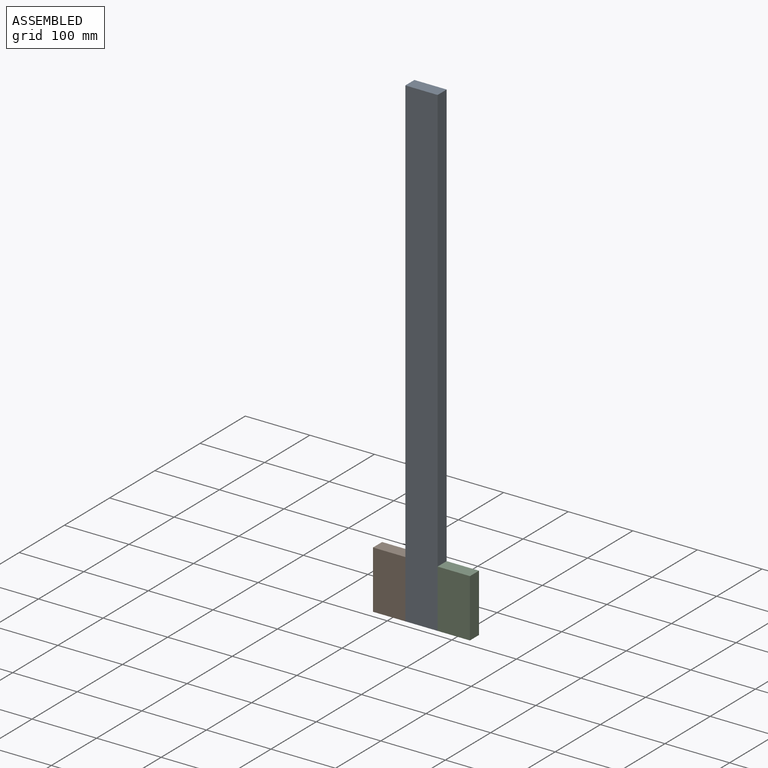
[diagram: assembled view]
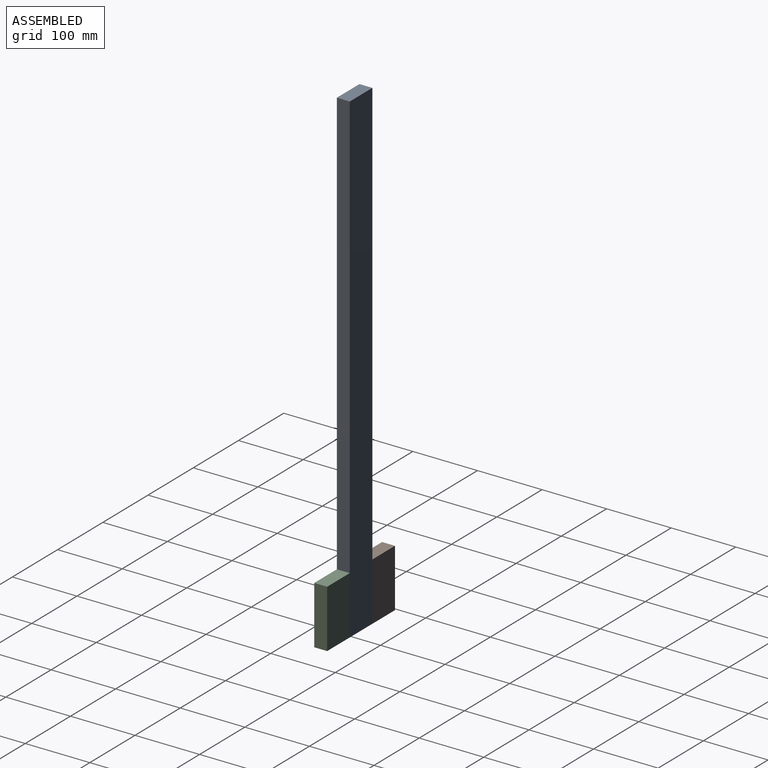
[diagram: assembled view, second angle]
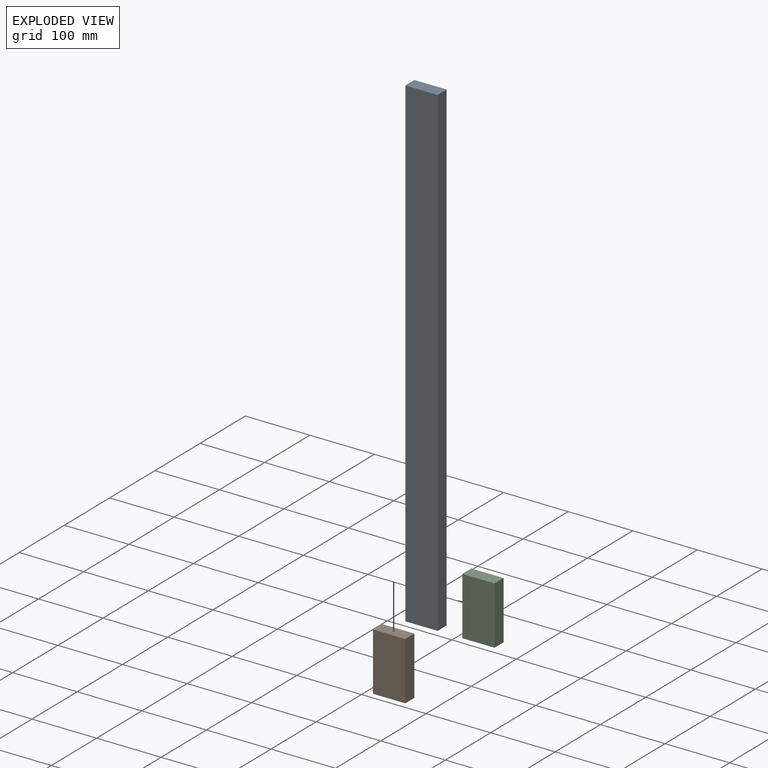
[diagram: exploded view]
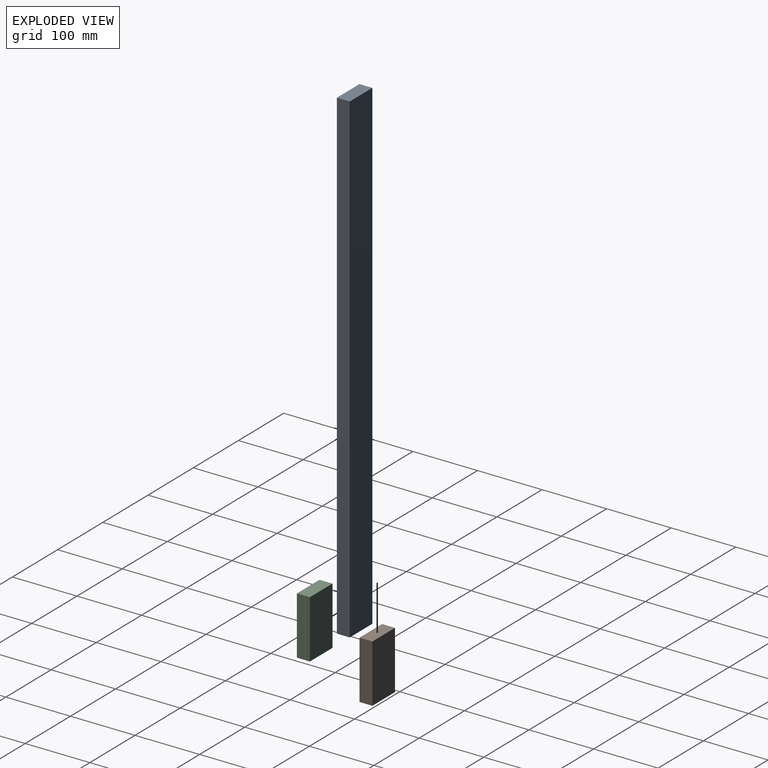
[diagram: exploded view, second angle]
ASSEMBLY  parts=3 mates=4
PART A: 6 faces, bbox 50x20x750 mm
  f0: plane 750x20mm, normal (-1,0,0), area 15000mm2, adj f1,f3,f4,f5
  f1: plane 50x20mm, normal (0,0,-1), area 1000mm2, adj f0,f2,f4,f5
  f2: plane 750x20mm, normal (1,0,0), area 15000mm2, adj f1,f3,f4,f5
  f3: plane 50x20mm, normal (0,0,1), area 1000mm2, adj f0,f2,f4,f5
  f4: plane 750x50mm, normal (0,-1,0), area 37500mm2, adj f0,f1,f2,f3
  f5: plane 750x50mm, normal (0,1,0), area 37500mm2, adj f0,f1,f2,f3
PART B: 6 faces, bbox 50x20x90 mm
  f0: plane 90x20mm, normal (-1,0,0), area 1800mm2, adj f1,f3,f4,f5
  f1: plane 50x20mm, normal (0,0,-1), area 1000mm2, adj f0,f2,f4,f5
  f2: plane 90x20mm, normal (1,0,0), area 1800mm2, adj f1,f3,f4,f5
  f3: plane 50x20mm, normal (0,0,1), area 1000mm2, adj f0,f2,f4,f5
  f4: plane 90x50mm, normal (0,-1,0), area 4500mm2, adj f0,f1,f2,f3
  f5: plane 90x50mm, normal (0,1,0), area 4500mm2, adj f0,f1,f2,f3
PART C: same geometry as B
PLACE A at identity fixed
PLACE B t=(-50,0,0)mm
PLACE C t=(50,0,0)mm
MATE planar C.f0 <-> A.f2  axis (-1,0,0) through (25,0,45)mm
MATE planar B.f1 <-> A.f1  axis (0,0,-1) through (-50,0,0)mm
MATE planar B.f2 <-> A.f0  axis (1,0,0) through (-25,0,45)mm
MATE planar C.f1 <-> A.f1  axis (0,0,-1) through (25,0,0)mm
